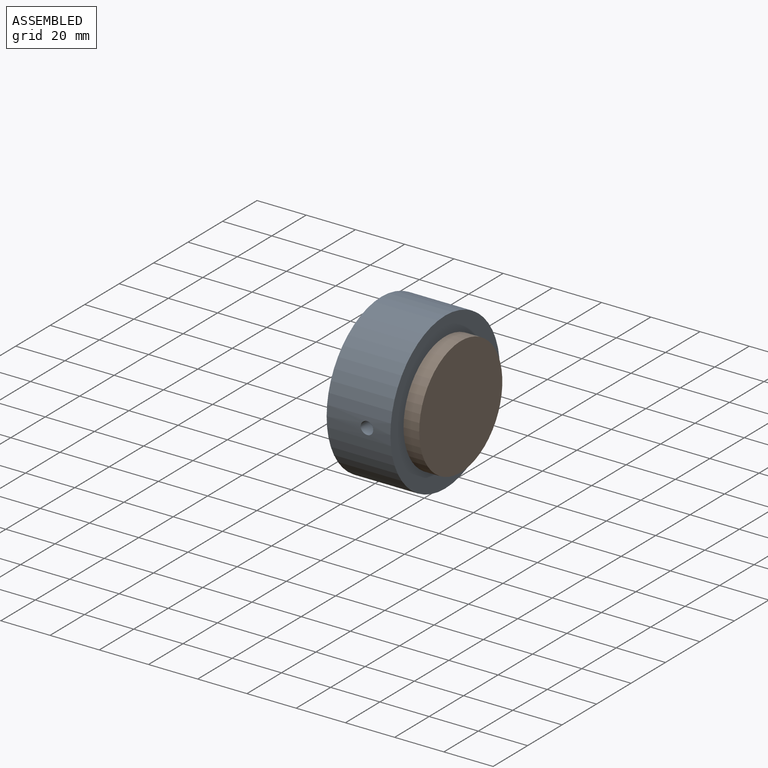
[diagram: assembled view]
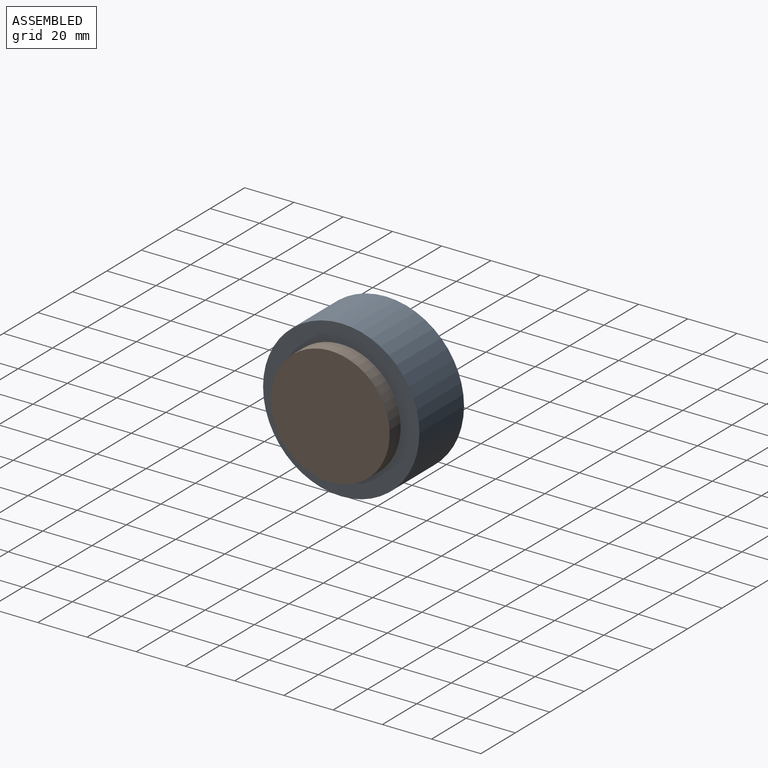
[diagram: assembled view, second angle]
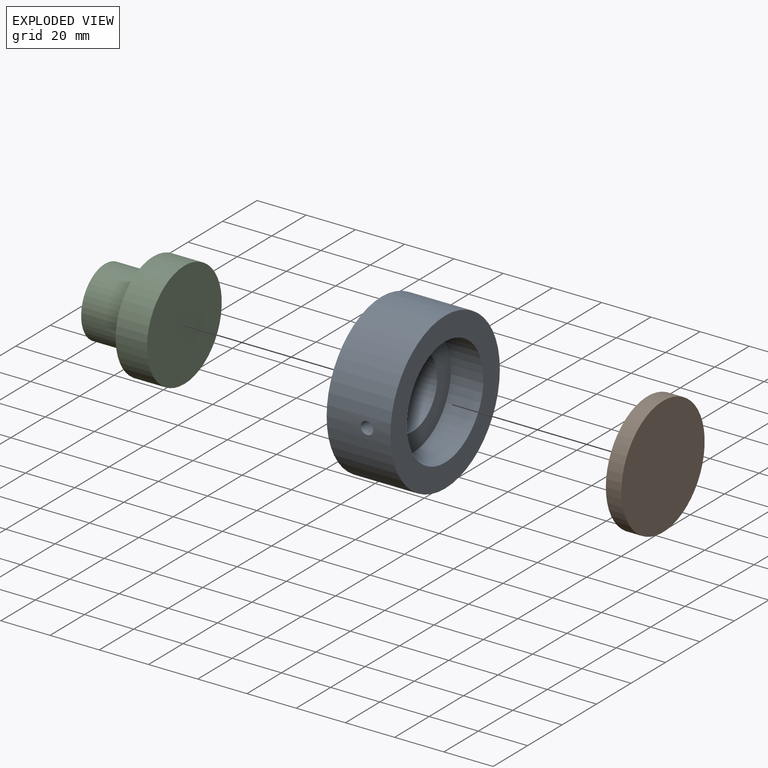
[diagram: exploded view]
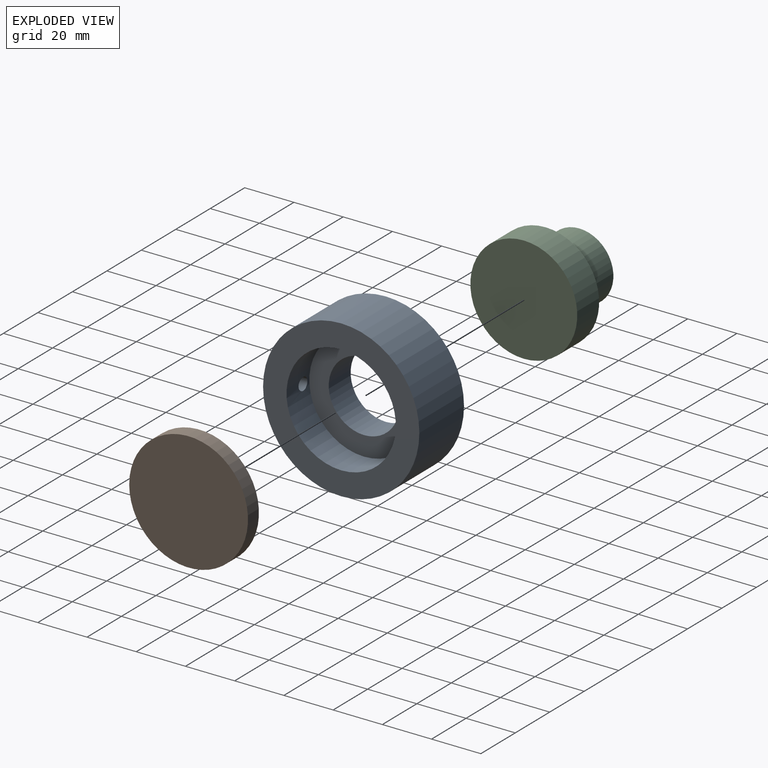
[diagram: exploded view, second angle]
ASSEMBLY  parts=3 mates=2
PART A: 7 faces, bbox 25.9x63.5x63.5 mm
  f0: cylinder r=31.75mm len=63.5mm, axis (1,0,0), area 5148.1mm2, adj f3,f4,f6
  f1: cylinder r=22.23mm len=44.45mm, axis (1,0,0), area 1823.9mm2, adj f4,f5,f6
  f2: cylinder r=14.33mm len=28.65mm, axis (1,0,0), area 1143.1mm2, adj f3,f5
  f3: plane 63.5x63.5mm, normal (-1,0,0), area 2522.2mm2, adj f0,f2
  f4: plane 63.5x63.5mm, normal (1,0,0), area 1615.1mm2, adj f0,f1
  f5: plane 44.45x44.45mm, normal (1,0,0), area 907.1mm2, adj f1,f2
  f6: cylinder r=2.55mm len=9.67mm, axis (0,1,0), area 153.1mm2, adj f0,f1
PART B: 3 faces, bbox 6.4x48.3x48.3 mm
  f0: cylinder r=24.13mm len=48.26mm, axis (1,0,0), area 962.7mm2, adj f1,f2
  f1: plane 48.26x48.26mm, normal (-1,0,0), area 1829.2mm2, adj f0
  f2: plane 48.26x48.26mm, normal (1,0,0), area 1829.2mm2, adj f0
PART C: 5 faces, bbox 32.3x43.4x43.4 mm
  f0: plane 43.43x43.43mm, normal (1,0,0), area 1481.7mm2, adj f4
  f1: plane 27.64x27.64mm, normal (-1,0,0), area 599.8mm2, adj f2
  f2: cylinder r=13.82mm len=27.64mm, axis (1,0,0), area 1698mm2, adj f1,f3
  f3: plane 43.43x43.43mm, normal (-1,0,0), area 881.9mm2, adj f2,f4
  f4: cylinder r=21.72mm len=43.43mm, axis (1,0,0), area 1732.9mm2, adj f0,f3
PLACE A t=(99.41,7.52,-1.49)mm
PLACE B t=(214.22,7.52,-1.49)mm
PLACE C t=(99.16,7.52,-1.49)mm
MATE revolute A.f0 <-> C.f2  axis (1,0,0) through (10.01,7.52,-1.49)mm
MATE fastened A.f0 <-> B.f0  axis (1,0,0) through (23.21,7.52,-1.49)mm
